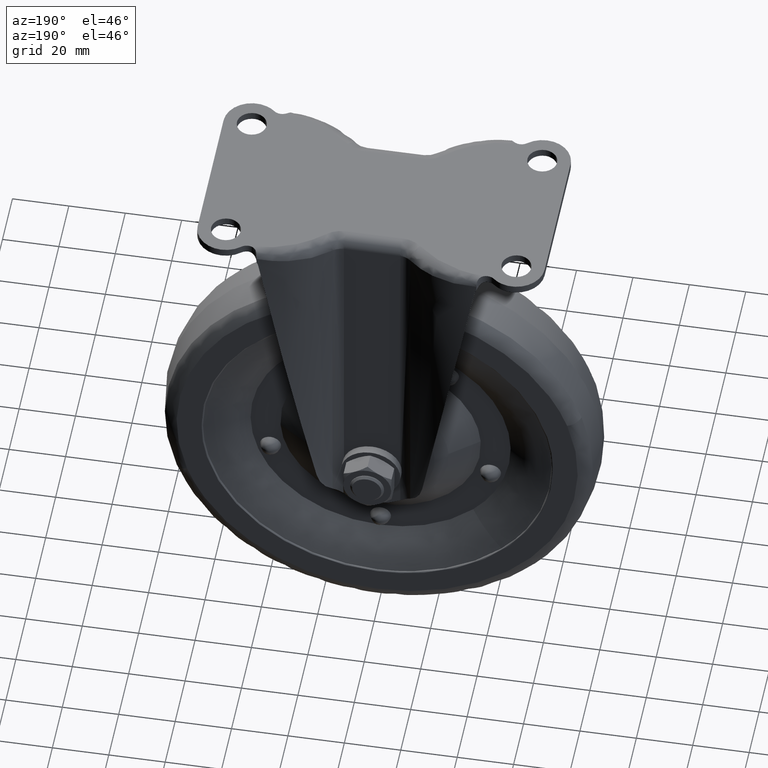
[diagram: clean part render]
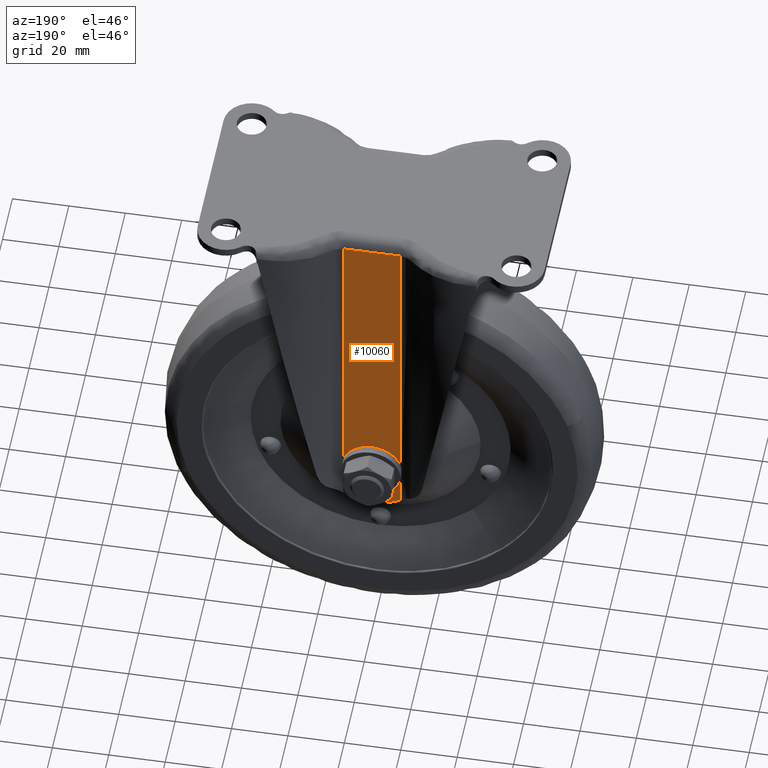
[diagram: same view with one face highlighted and labeled with its STEP entity id]
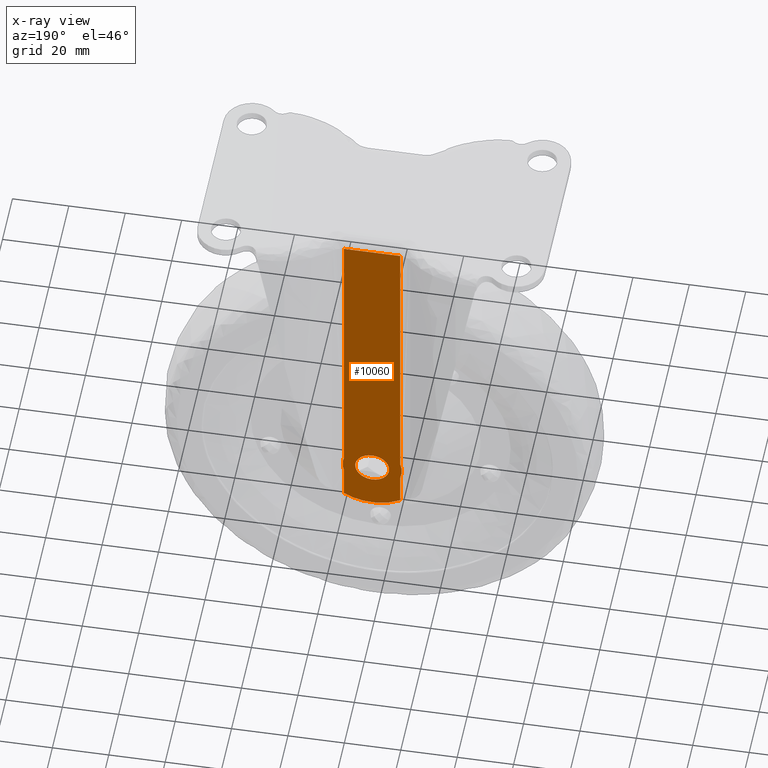
[diagram: x-ray of the same camera — body ghosted, the highlighted face saturated]
A machine part, auxiliary view. The second image highlights one B-rep face of the part: STEP entity #10060.
The next image is the same camera in x-ray: the body ghosted, the highlighted face saturated — about 0% of this face is hidden behind the body in this view.
In plain terms, the highlighted face is a freeform B-spline surface patch.
Its self-contained STEP definition (entity closure, byte-faithful):
#5802=CARTESIAN_POINT('',(-5.988807792385947,24.0,-112.866291176331600));
#5803=VERTEX_POINT('',#5802);
#5809=CARTESIAN_POINT('',(0.0,24.0,-106.500001000000000));
#5810=VERTEX_POINT('',#5809);
#5811=CARTESIAN_POINT('',(-5.988807792385946,24.000000000000004,-112.866291176331560));
#5812=CARTESIAN_POINT('',(-5.999999000000000,23.999999999999996,-112.683316549324500));
#5813=CARTESIAN_POINT('',(-5.999999000000000,24.0,-112.500000000000000));
#5814=CARTESIAN_POINT('',(-5.999998999999999,23.999999999999996,-106.500001000000030));
#5815=CARTESIAN_POINT('',(0.0,24.0,-106.500001000000000));
#5823=(BOUNDED_CURVE()B_SPLINE_CURVE(2,(#5811,#5812,#5813,#5814,#5815),.UNSPECIFIED.,.F.,.U.)B_SPLINE_CURVE_WITH_KNOTS((3,2,3),(0.239332962237042,0.250000000000000,0.500000000000000),.UNSPECIFIED.)CURVE()GEOMETRIC_REPRESENTATION_ITEM()RATIONAL_B_SPLINE_CURVE((0.976072041662644,0.987502787897610,1.0,0.707106781186548,1.0))REPRESENTATION_ITEM(''));
#5824=EDGE_CURVE('',#5803,#5810,#5823,.T.);
#5826=CARTESIAN_POINT('',(5.988807792385947,24.0,-112.133708823668400));
#5827=VERTEX_POINT('',#5826);
#5828=CARTESIAN_POINT('',(0.0,24.0,-106.500001000000000));
#5829=CARTESIAN_POINT('',(5.644235460566668,23.999999999999996,-106.500001000000030));
#5830=CARTESIAN_POINT('',(5.988807792385946,24.0,-112.133708823668480));
#5838=(BOUNDED_CURVE()B_SPLINE_CURVE(2,(#5828,#5829,#5830),.UNSPECIFIED.,.F.,.U.)B_SPLINE_CURVE_WITH_KNOTS((3,3),(0.500000000000000,0.739332962237042),.UNSPECIFIED.)CURVE()GEOMETRIC_REPRESENTATION_ITEM()RATIONAL_B_SPLINE_CURVE((1.0,0.719603993288937,0.976072041662645))REPRESENTATION_ITEM(''));
#5839=EDGE_CURVE('',#5810,#5827,#5838,.T.);
#5913=CARTESIAN_POINT('',(0.0,24.0,-118.499999000000000));
#5914=VERTEX_POINT('',#5913);
#5915=CARTESIAN_POINT('',(5.988807792385946,23.999999999999996,-112.133708823668410));
#5916=CARTESIAN_POINT('',(5.999999000000000,24.000000000000007,-112.316683450675530));
#5917=CARTESIAN_POINT('',(5.999999000000000,24.0,-112.500000000000000));
#5918=CARTESIAN_POINT('',(5.999998999999999,23.999999999999996,-118.499998999999990));
#5919=CARTESIAN_POINT('',(0.0,24.0,-118.499999000000000));
#5927=(BOUNDED_CURVE()B_SPLINE_CURVE(2,(#5915,#5916,#5917,#5918,#5919),.UNSPECIFIED.,.F.,.U.)B_SPLINE_CURVE_WITH_KNOTS((3,2,3),(0.739332962237042,0.750000000000000,1.0),.UNSPECIFIED.)CURVE()GEOMETRIC_REPRESENTATION_ITEM()RATIONAL_B_SPLINE_CURVE((0.976072041662644,0.987502787897611,1.0,0.707106781186548,1.0))REPRESENTATION_ITEM(''));
#5928=EDGE_CURVE('',#5827,#5914,#5927,.T.);
#5930=CARTESIAN_POINT('',(0.0,24.0,-118.499999000000000));
#5931=CARTESIAN_POINT('',(-5.644235460566674,24.000000000000004,-118.499999000000000));
#5932=CARTESIAN_POINT('',(-5.988807792385946,24.000000000000004,-112.866291176331540));
#5940=(BOUNDED_CURVE()B_SPLINE_CURVE(2,(#5930,#5931,#5932),.UNSPECIFIED.,.F.,.U.)B_SPLINE_CURVE_WITH_KNOTS((3,3),(0.0,0.239332962237043),.UNSPECIFIED.)CURVE()GEOMETRIC_REPRESENTATION_ITEM()RATIONAL_B_SPLINE_CURVE((1.0,0.719603993288937,0.976072041662645))REPRESENTATION_ITEM(''));
#5941=EDGE_CURVE('',#5914,#5803,#5940,.T.);
#8976=CARTESIAN_POINT('',(-9.973044000000000,24.0,-115.784565781662000));
#8977=VERTEX_POINT('',#8976);
#8978=CARTESIAN_POINT('',(-9.973044000000000,24.0,-109.215434218338000));
#8979=VERTEX_POINT('',#8978);
#9003=CARTESIAN_POINT('',(-9.973044000000005,24.0,-115.784565781662000));
#9004=CARTESIAN_POINT('',(-11.054797211363045,24.000000000000004,-112.500000000000010));
#9005=CARTESIAN_POINT('',(-9.973044000000003,24.0,-109.215434218338000));
#9013=(BOUNDED_CURVE()B_SPLINE_CURVE(2,(#9003,#9004,#9005),.UNSPECIFIED.,.F.,.U.)CURVE()GEOMETRIC_REPRESENTATION_ITEM()QUASI_UNIFORM_CURVE()RATIONAL_B_SPLINE_CURVE((1.0,0.949813804744172,1.0))REPRESENTATION_ITEM(''));
#9014=EDGE_CURVE('',#8977,#8979,#9013,.T.);
#9033=CARTESIAN_POINT('',(9.973044000000000,24.0,-109.215434218338000));
#9034=VERTEX_POINT('',#9033);
#9035=CARTESIAN_POINT('',(9.973044000000000,24.0,-115.784565781662000));
#9036=VERTEX_POINT('',#9035);
#9060=CARTESIAN_POINT('',(9.973044000000002,24.0,-109.215434218338000));
#9061=CARTESIAN_POINT('',(11.054797211363045,24.0,-112.500000000000000));
#9062=CARTESIAN_POINT('',(9.973044000000007,24.0,-115.784565781662000));
#9070=(BOUNDED_CURVE()B_SPLINE_CURVE(2,(#9060,#9061,#9062),.UNSPECIFIED.,.F.,.U.)CURVE()GEOMETRIC_REPRESENTATION_ITEM()QUASI_UNIFORM_CURVE()RATIONAL_B_SPLINE_CURVE((1.0,0.949813804744172,1.0))REPRESENTATION_ITEM(''));
#9071=EDGE_CURVE('',#9034,#9036,#9070,.T.);
#9181=CARTESIAN_POINT('',(-9.973044000000000,24.0,-4.400000000000000));
#9182=VERTEX_POINT('',#9181);
#9228=CARTESIAN_POINT('',(9.973044000000000,24.0,-4.400000000000000));
#9229=VERTEX_POINT('',#9228);
#9243=CARTESIAN_POINT('',(-9.973044000000000,24.0,-4.400000000000000));
#9244=CARTESIAN_POINT('',(9.973044000000000,24.0,-4.400000000000000));
#9245=QUASI_UNIFORM_CURVE('',1,(#9243,#9244),.UNSPECIFIED.,.F.,.U.);
#9246=EDGE_CURVE('',#9182,#9229,#9245,.T.);
#9837=CARTESIAN_POINT('',(-9.973044000000000,24.0,-127.172150848835000));
#9838=VERTEX_POINT('',#9837);
#9856=CARTESIAN_POINT('',(9.973044000000000,24.0,-127.172150848835000));
#9857=VERTEX_POINT('',#9856);
#9858=CARTESIAN_POINT('',(-9.973044000000060,24.0,-127.172150848835100));
#9859=CARTESIAN_POINT('',(-2.602745E-015,24.0,-133.322329684633730));
#9860=CARTESIAN_POINT('',(9.973044000000053,24.0,-127.172150848835100));
#9868=(BOUNDED_CURVE()B_SPLINE_CURVE(2,(#9858,#9859,#9860),.UNSPECIFIED.,.F.,.U.)CURVE()GEOMETRIC_REPRESENTATION_ITEM()QUASI_UNIFORM_CURVE()RATIONAL_B_SPLINE_CURVE((1.0,0.851165720725805,1.0))REPRESENTATION_ITEM(''));
#9869=EDGE_CURVE('',#9838,#9857,#9868,.T.);
#9992=CARTESIAN_POINT('',(9.973044000000000,24.0,-109.215434218338000));
#9993=CARTESIAN_POINT('',(9.973044000000000,24.0,-4.400000000000000));
#9994=QUASI_UNIFORM_CURVE('',1,(#9992,#9993),.UNSPECIFIED.,.F.,.U.);
#9995=EDGE_CURVE('',#9034,#9229,#9994,.T.);
#10000=CARTESIAN_POINT('',(9.973044000000000,24.0,-127.172150848835000));
#10001=CARTESIAN_POINT('',(9.973044000000000,24.0,-115.784565781662000));
#10002=QUASI_UNIFORM_CURVE('',1,(#10000,#10001),.UNSPECIFIED.,.F.,.U.);
#10003=EDGE_CURVE('',#9857,#9036,#10002,.T.);
#10023=CARTESIAN_POINT('',(-9.973044000000000,24.0,-127.172150848835000));
#10024=CARTESIAN_POINT('',(-9.973044000000000,24.0,-115.784565781662000));
#10025=QUASI_UNIFORM_CURVE('',1,(#10023,#10024),.UNSPECIFIED.,.F.,.U.);
#10026=EDGE_CURVE('',#9838,#8977,#10025,.T.);
#10031=CARTESIAN_POINT('',(-9.973044000000000,24.0,-109.215434218338000));
#10032=CARTESIAN_POINT('',(-9.973044000000000,24.0,-4.400000000000000));
#10033=QUASI_UNIFORM_CURVE('',1,(#10031,#10032),.UNSPECIFIED.,.F.,.U.);
#10034=EDGE_CURVE('',#8979,#9182,#10033,.T.);
#10039=CARTESIAN_POINT('',(-11.548948859397679,24.0,1.873719864207303));
#10040=CARTESIAN_POINT('',(-11.548948859397679,24.0,-136.273725388106700));
#10041=CARTESIAN_POINT('',(11.548949422661520,24.0,1.873719864207303));
#10042=CARTESIAN_POINT('',(11.548949422661520,24.0,-136.273725388106700));
#10043=B_SPLINE_SURFACE_WITH_KNOTS('',1,1,((#10039,#10041),(#10040,#10042)),.UNSPECIFIED.,.F.,.F.,.U.,(2,2),(2,2),(0.0,138.147445252313990),(0.0,23.097898282059191),.UNSPECIFIED.);
#10044=ORIENTED_EDGE('',*,*,#10026,.T.);
#10045=ORIENTED_EDGE('',*,*,#9014,.T.);
#10046=ORIENTED_EDGE('',*,*,#10034,.T.);
#10047=ORIENTED_EDGE('',*,*,#9246,.T.);
#10048=ORIENTED_EDGE('',*,*,#9995,.F.);
#10049=ORIENTED_EDGE('',*,*,#9071,.T.);
#10050=ORIENTED_EDGE('',*,*,#10003,.F.);
#10051=ORIENTED_EDGE('',*,*,#9869,.F.);
#10052=EDGE_LOOP('',(#10044,#10045,#10046,#10047,#10048,#10049,#10050,#10051));
#10053=FACE_OUTER_BOUND('',#10052,.T.);
#10054=ORIENTED_EDGE('',*,*,#5839,.F.);
#10055=ORIENTED_EDGE('',*,*,#5824,.F.);
#10056=ORIENTED_EDGE('',*,*,#5941,.F.);
#10057=ORIENTED_EDGE('',*,*,#5928,.F.);
#10058=EDGE_LOOP('',(#10054,#10055,#10056,#10057));
#10059=FACE_BOUND('',#10058,.T.);
#10060=ADVANCED_FACE('',(#10053,#10059),#10043,.F.);